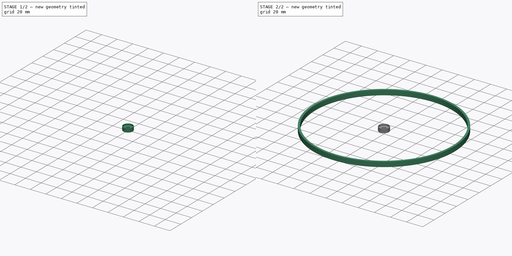
[diagram: build sequence overview — one tinted view per stage of 2, left to right]
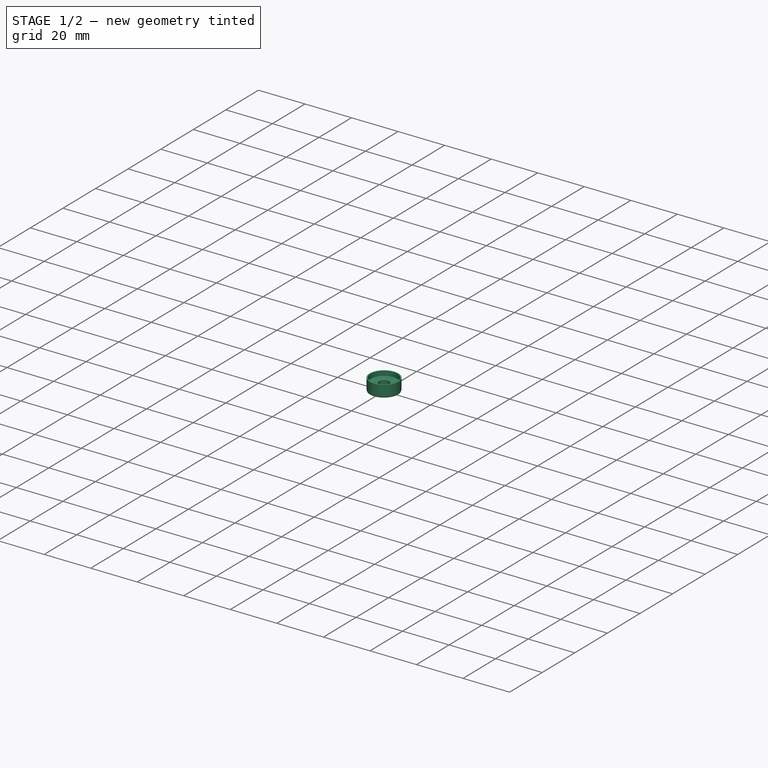
[diagram: stage 1 of 2 — iso view after this stage's code; geometry added in this stage tinted green]
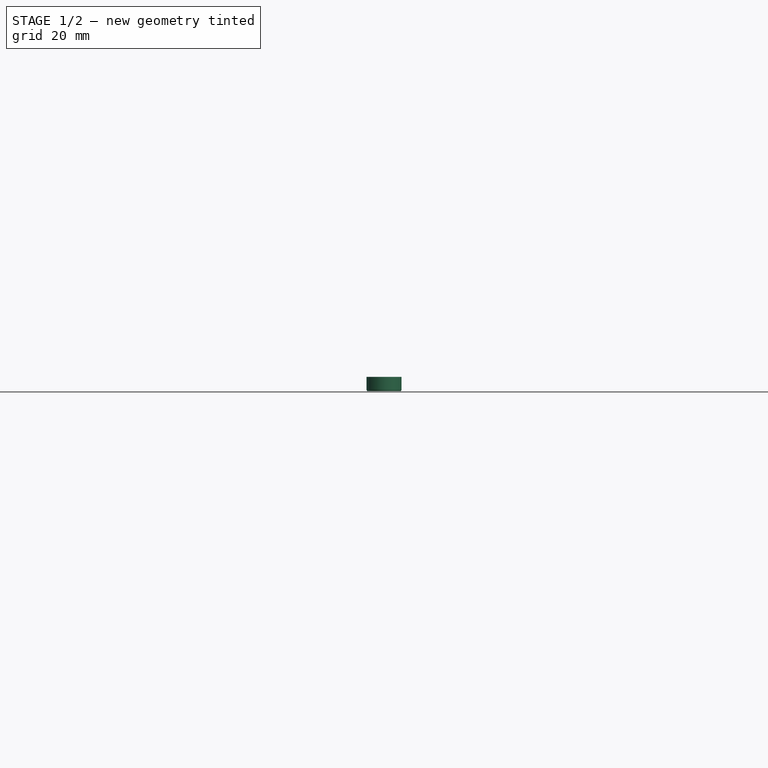
[diagram: stage 1 of 2 — front view after this stage's code; geometry added in this stage tinted green]
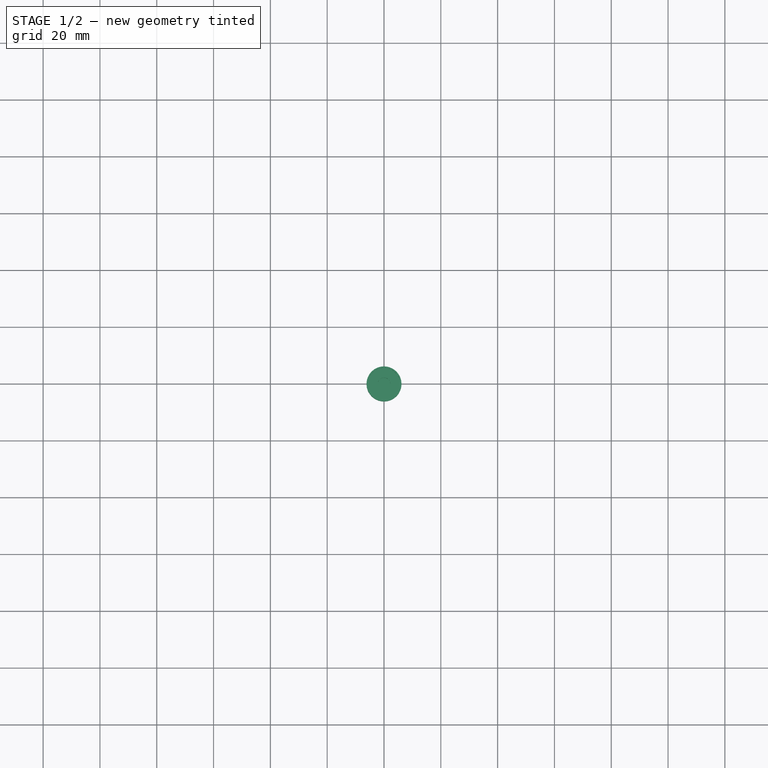
[diagram: stage 1 of 2 — top view after this stage's code; geometry added in this stage tinted green]
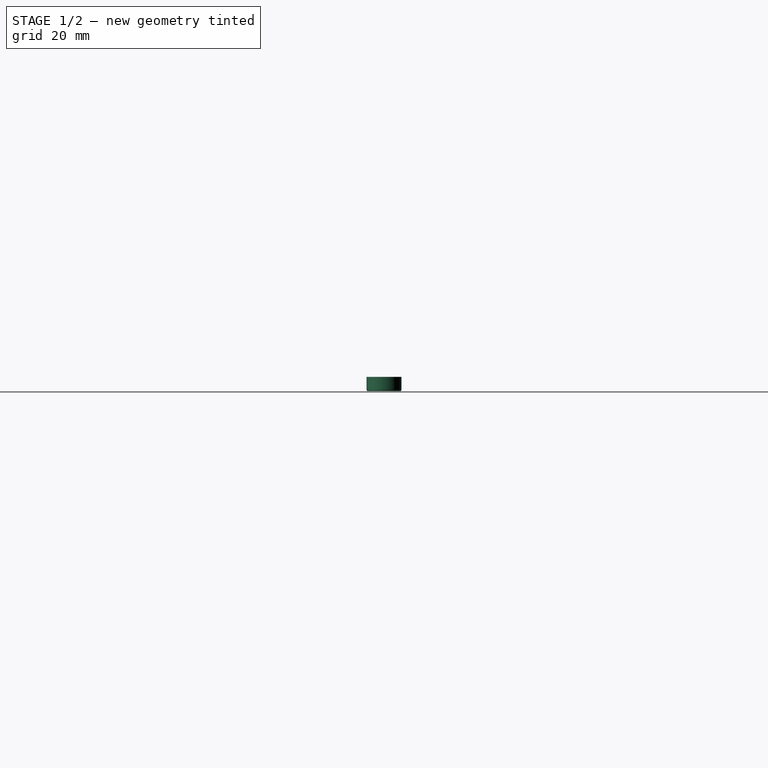
[diagram: stage 1 of 2 — right view after this stage's code; geometry added in this stage tinted green]
FCSTD DOCUMENT  (FreeCAD 0.20R28647 (Git))
Label: Testring
License: All rights reserved
LicenseURL: http://en.wikipedia.org/wiki/All_rights_reserved
objects: Sketcher::SketchObject×3, PartDesign::Body×3, PartDesign::Pad×2, PartDesign::Revolution×1
note: 12 computed .brp shape members not serialized (recipe doc carries the construction recipe); baked Part::Feature solids carry a one-line shape summary decoded from their .brp

FEATURE [PartDesign::Body] Body
  Group = -> [Sketch,Pad]
  Origin = -> Origin
  Tip = -> Pad
FEATURE [Sketcher::SketchObject] Sketch001
  FullyConstrained = true
  MapMode = 5
  Support = -> [XY_Plane001]
  sketch-geometry (2):
    g0: Circle CenterX=0 CenterY=0 CenterZ=0 NormalX=0 NormalY=0 NormalZ=1 AngleXU=0 Radius=2.25
    g1: Circle CenterX=0 CenterY=0 CenterZ=0 NormalX=0 NormalY=0 NormalZ=1 AngleXU=0 Radius=6
  constraints (4):
    c: Coincident(g1,g0)
    c: Coincident(g0,g-1)
    c: Diameter(g0) = 4.5
    c: Diameter(g1) = 12
FEATURE [PartDesign::Pad] Pad001
  Direction = (0,0,1)
  Length = 3
  Length2 = 10
  Profile = -> Sketch001
  ReferenceAxis = -> Sketch001 [N_Axis]
  Type = 0
FEATURE [PartDesign::Body] Body001  label="12x4.5x3.5_washer"
  Group = -> [Sketch001,Pad001]
  Origin = -> Origin001
  Placement = pos=(-50,0,0) rot=(0,0,1;0rad)
  Tip = -> Pad001
FEATURE [Sketcher::SketchObject] Sketch002
  FullyConstrained = true
  MapMode = 5
  Placement = pos=(0,0,0) rot=(1,0,0;1.5708rad)
  Support = -> [XZ_Plane002]
  sketch-geometry (10):
    g0: LineSegment StartX=6.15 StartY=5 StartZ=0 EndX=6.15 EndY=0.5 EndZ=0
    g1: LineSegment StartX=5.65 StartY=0 StartZ=0 EndX=0 EndY=0 EndZ=0
    g2: LineSegment StartX=0 StartY=0 StartZ=0 EndX=0 EndY=0.5 EndZ=0
    g3: LineSegment StartX=5.65 StartY=5 StartZ=0 EndX=5.65 EndY=1.25 EndZ=0
    g4: LineSegment StartX=4.9 StartY=0.5 StartZ=0 EndX=0 EndY=0.5 EndZ=0
    g5: LineSegment StartX=5.65 StartY=5 StartZ=0 EndX=6.15 EndY=5 EndZ=0
    g6: ArcOfCircle CenterX=4.9 CenterY=1.25 CenterZ=0 NormalX=0 NormalY=0 NormalZ=1 AngleXU=0 Radius=0.75 StartAngle=4.71239 EndAngle=6.28319
    g7: GeomPoint X=5.65 Y=0.5 Z=0
    g8: ArcOfCircle CenterX=5.65 CenterY=0.5 CenterZ=0 NormalX=0 NormalY=0 NormalZ=1 AngleXU=0 Radius=0.5 StartAngle=4.71239 EndAngle=6.28319
    g9: GeomPoint X=6.15 Y=0 Z=0
  constraints (26):
    c: Coincident(g5,g0)
    c: Coincident(g1,g2)
    c: Horizontal(g1)
    c: Vertical(g0)
    c: Vertical(g2)
    c: PointOnObject(g9,g-1)
    c: Horizontal(g4)
    c: Vertical(g3)
    c: Coincident(g2,g4)
    c: PointOnObject(g2,g-2)
    c: DistanceX(g1,g9) = 6.15
    c: DistanceX(g5,g5) = 0.5
    c: Coincident(g3,g5)
    c: Equal(g2,g5)
    c: DistanceY(g9,g0) = 5
    c: Horizontal(g5)
    c: PointOnObject(g7,g3)
    c: PointOnObject(g7,g4)
    c: Tangent(g3,g6) = 1.5708
    c: Tangent(g4,g6) = 1.5708
    c: Diameter(g6) = 1.5
    c: PointOnObject(g9,g0)
    c: PointOnObject(g9,g1)
    c: Tangent(g0,g8) = 1.5708
    c: Tangent(g1,g8) = 1.5708
    c: Diameter(g8) = 1
FEATURE [PartDesign::Revolution] Revolution
  Angle = 360
  Axis = (0,2e-16,1)
  Base = (0,0,0)
  Placement = pos=(0,0,0) rot=(1,0,0;1.5708rad)
  Profile = -> Sketch002
  ReferenceAxis = -> Sketch002 [V_Axis]
  Reversed = true
FEATURE [PartDesign::Body] Body002  label="12mm_cap"
  Group = -> [Sketch002,Revolution]
  Origin = -> Origin002
  Tip = -> Revolution
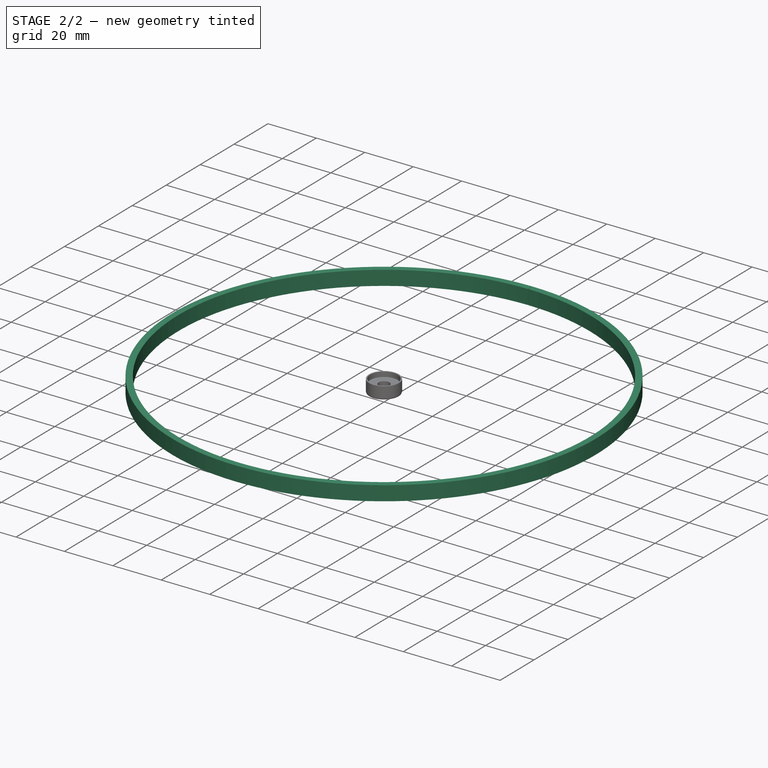
[diagram: stage 2 of 2 — iso view after this stage's code; geometry added in this stage tinted green]
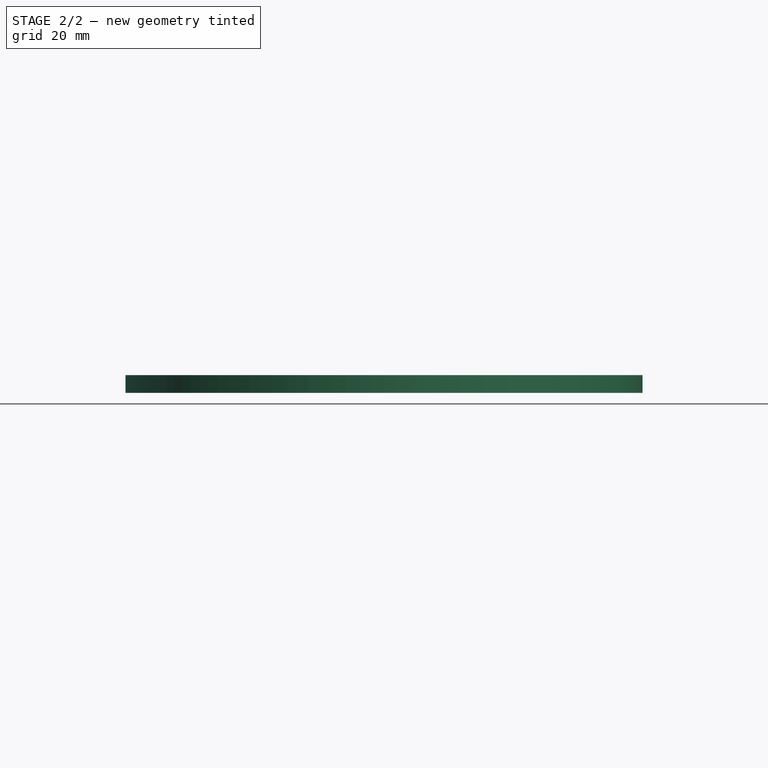
[diagram: stage 2 of 2 — front view after this stage's code; geometry added in this stage tinted green]
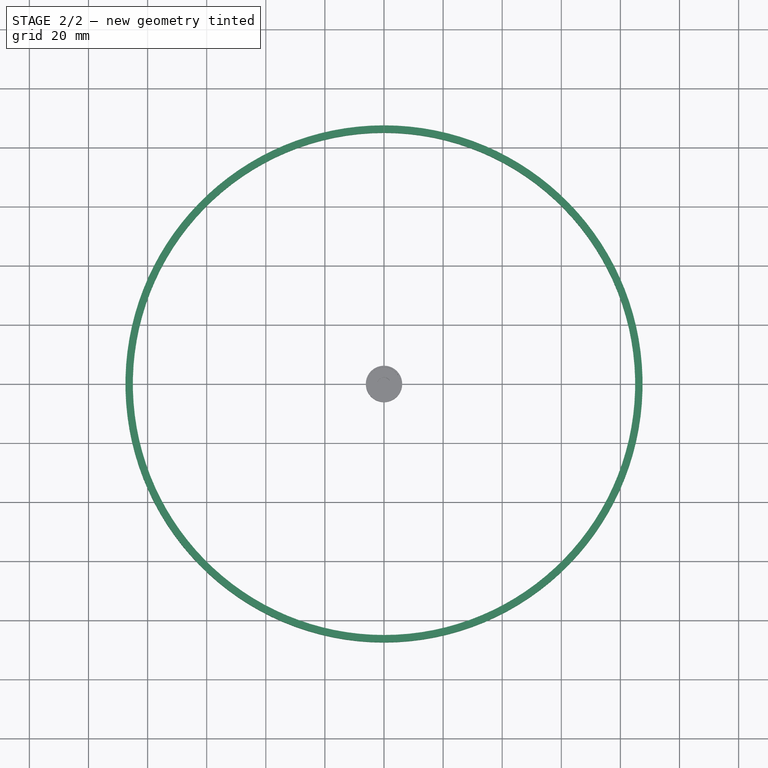
[diagram: stage 2 of 2 — top view after this stage's code; geometry added in this stage tinted green]
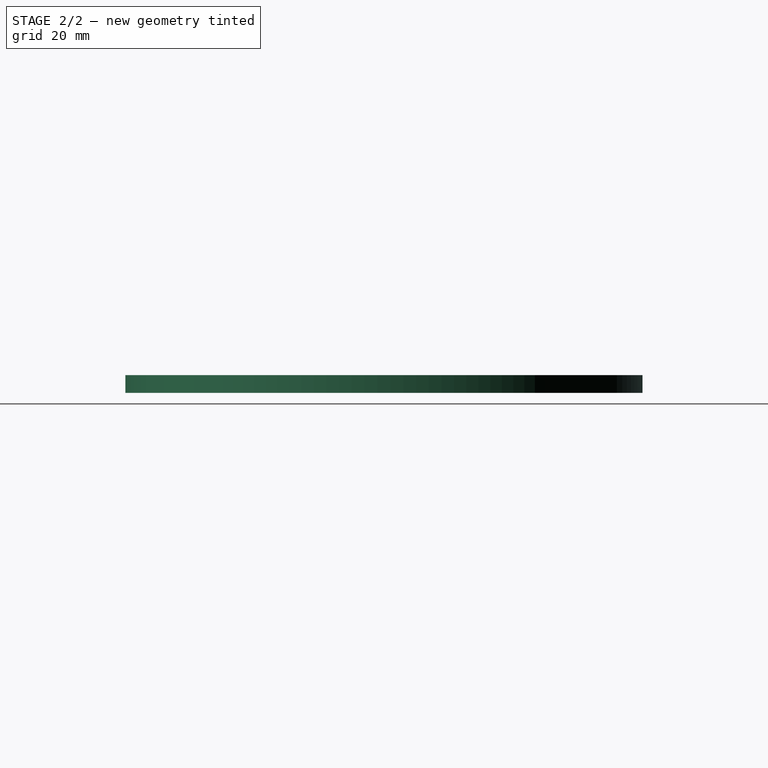
[diagram: stage 2 of 2 — right view after this stage's code; geometry added in this stage tinted green]
FEATURE [Sketcher::SketchObject] Sketch
  FullyConstrained = true
  MapMode = 5
  Support = -> [XY_Plane]
  sketch-geometry (4):
    g0: ArcOfCircle CenterX=0 CenterY=0 CenterZ=0 NormalX=0 NormalY=0 NormalZ=1 AngleXU=0 Radius=85 StartAngle=1.57138 EndAngle=7.85339
    g1: ArcOfCircle CenterX=0 CenterY=0 CenterZ=0 NormalX=0 NormalY=0 NormalZ=1 AngleXU=0 Radius=87.5 StartAngle=1.57137 EndAngle=7.85341
    g2: LineSegment StartX=-0.05 StartY=87.5 StartZ=0 EndX=-0.05 EndY=85 EndZ=0
    g3: LineSegment StartX=0.05 StartY=87.5 StartZ=0 EndX=0.05 EndY=85 EndZ=0
  constraints (12):
    c: Coincident(g0,g-1)
    c: Coincident(g1,g0)
    c: Vertical(g2)
    c: Coincident(g0,g3)
    c: Coincident(g0,g2)
    c: Coincident(g1,g3)
    c: Coincident(g1,g2)
    c: Symmetric(g0,g0,g-2)
    c: DistanceX(g1,g1) = 0.1
    c: DistanceY(g3,g3) = 2.5
    c: Radius(g0) = 85
    c: Vertical(g3)
FEATURE [PartDesign::Pad] Pad
  Direction = (0,0,1)
  Length = 6
  Length2 = 10
  Profile = -> Sketch
  ReferenceAxis = -> Sketch [N_Axis]
  Type = 0
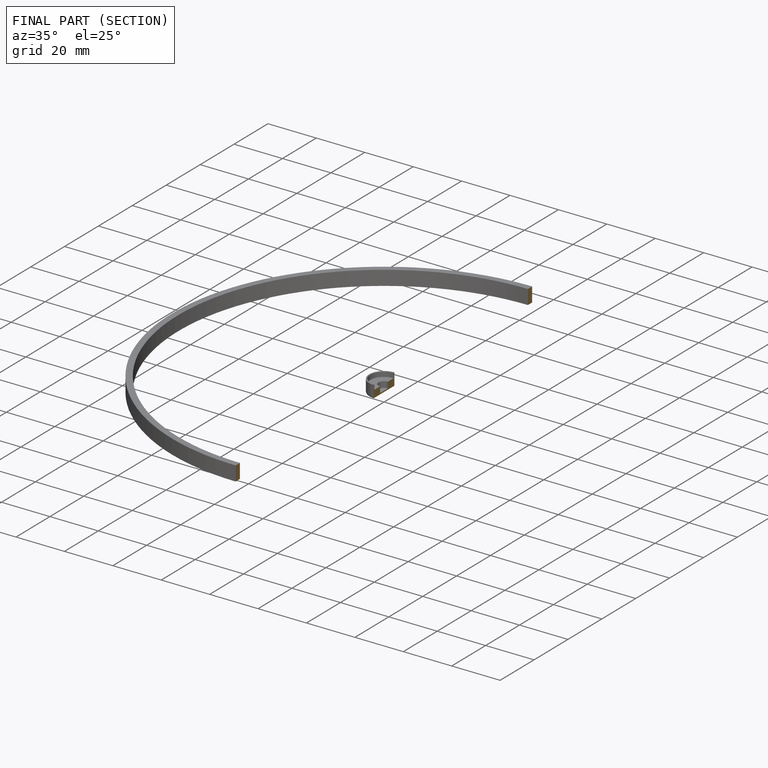
[diagram: finished part — half-section view (interior)]
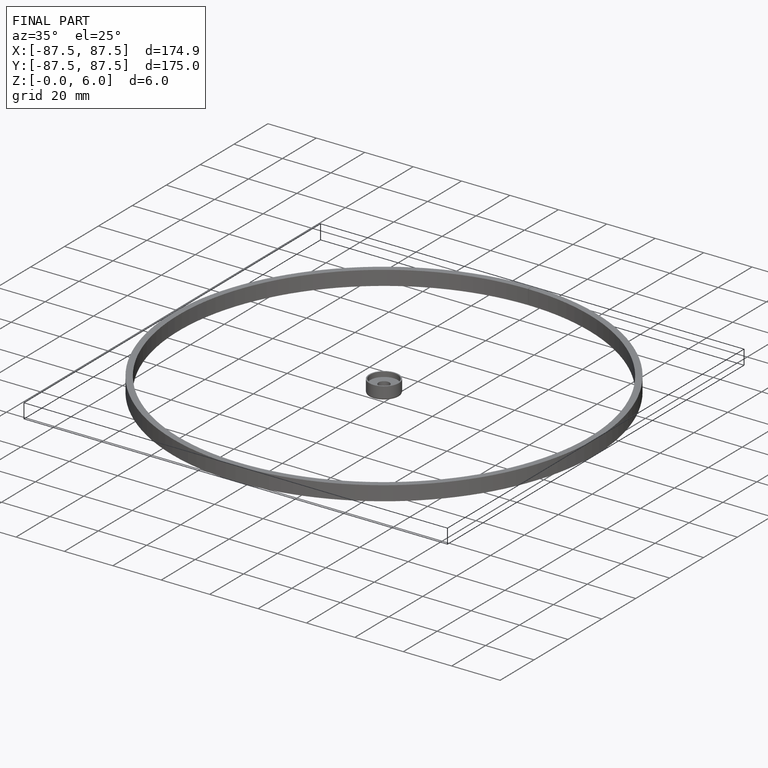
[diagram: finished part — iso view with bounding-box wireframe]
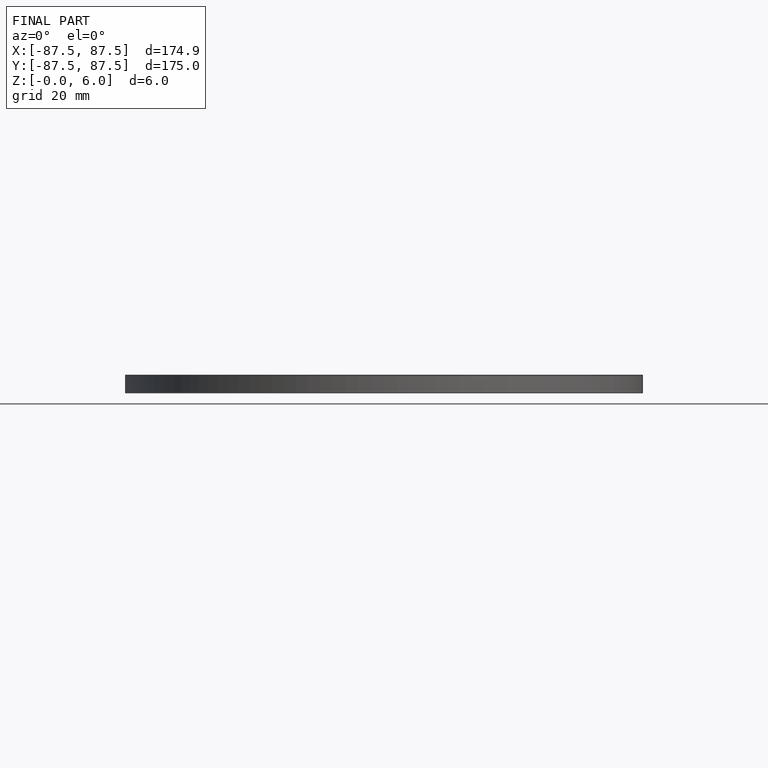
[diagram: finished part — front view with bounding-box wireframe]
